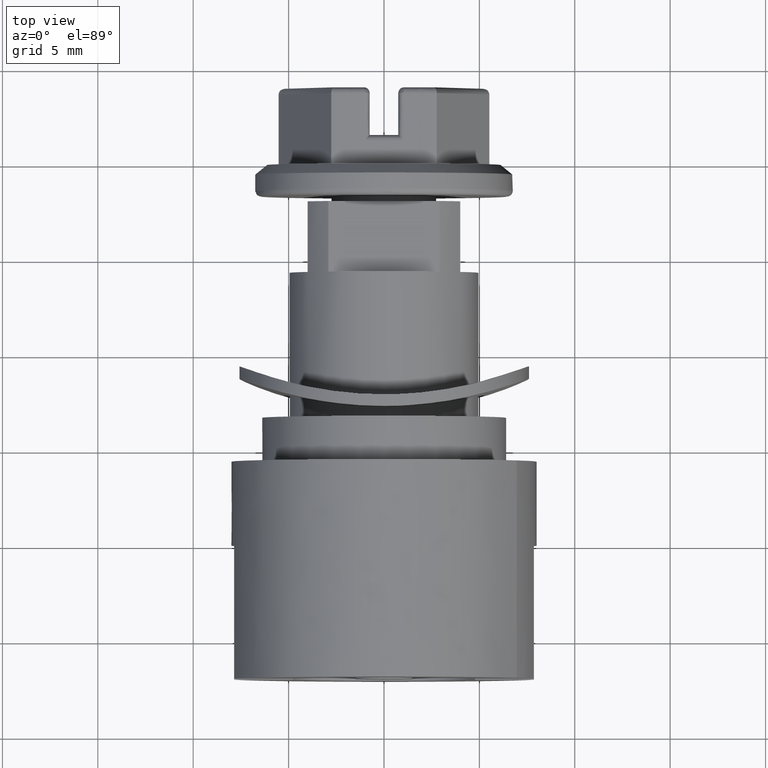
[diagram: clean part render]
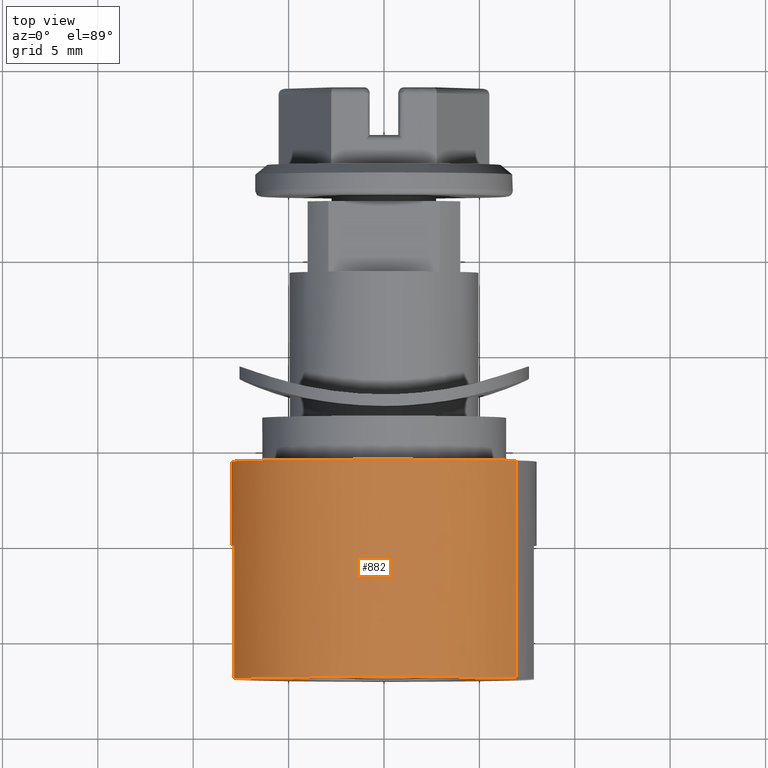
[diagram: same view with one face highlighted and labeled with its STEP entity id]
A machine part, top view. The second image highlights one B-rep face of the part: STEP entity #882.
In plain terms, the highlighted face is a freeform B-spline surface patch.
Its self-contained STEP definition (entity closure, byte-faithful):
#730=CARTESIAN_POINT('',(6.950676112668893,4.685000215249976,3.960821588565669));
#731=CARTESIAN_POINT('',(6.721242238242456,4.685000215249976,4.363445265182824));
#732=CARTESIAN_POINT('',(6.446854267913689,4.685000215249976,4.736884643724912));
#733=CARTESIAN_POINT('',(1.709969624188778,4.685000215249976,11.183738911638599));
#734=CARTESIAN_POINT('',(-4.736884643724912,4.685000215249976,6.446854267913689));
#735=CARTESIAN_POINT('',(-11.183738911638599,4.685000215249976,1.709969624188778));
#736=CARTESIAN_POINT('',(-6.446854267913689,4.685000215249976,-4.736884643724912));
#737=CARTESIAN_POINT('',(-1.709969624188778,4.685000215249976,-11.183738911638599));
#738=CARTESIAN_POINT('',(4.736884643724912,4.685000215249976,-6.446854267913689));
#739=CARTESIAN_POINT('',(6.950676112668893,-7.292125005381249,3.960821588565669));
#740=CARTESIAN_POINT('',(6.721242238242456,-7.292125005381249,4.363445265182824));
#741=CARTESIAN_POINT('',(6.446854267913689,-7.292125005381250,4.736884643724912));
#742=CARTESIAN_POINT('',(1.709969624188778,-7.292125005381249,11.183738911638599));
#743=CARTESIAN_POINT('',(-4.736884643724912,-7.292125005381250,6.446854267913689));
#744=CARTESIAN_POINT('',(-11.183738911638599,-7.292125005381249,1.709969624188778));
#745=CARTESIAN_POINT('',(-6.446854267913689,-7.292125005381250,-4.736884643724912));
#746=CARTESIAN_POINT('',(-1.709969624188778,-7.292125005381249,-11.183738911638599));
#747=CARTESIAN_POINT('',(4.736884643724912,-7.292125005381250,-6.446854267913689));
#755=(BOUNDED_SURFACE()B_SPLINE_SURFACE(2,1,((#730,#739),(#731,#740),(#732,#741),(#733,#742),(#734,#743),(#735,#744),(#736,#745),(#737,#746),(#738,#747)),.UNSPECIFIED.,.F.,.F.,.U.)B_SPLINE_SURFACE_WITH_KNOTS((3,2,2,2,3),(2,2),(0.0,1.060386770040789,14.315221395550649,27.570056021060520,40.824890646570381),(0.0,11.977125220631230),.UNSPECIFIED.)GEOMETRIC_REPRESENTATION_ITEM()RATIONAL_B_SPLINE_SURFACE(((0.956886118190660,0.956886118190660),(0.976568542494924,0.976568542494924),(1.0,1.0),(0.707106781186548,0.707106781186548),(1.0,1.0),(0.707106781186548,0.707106781186548),(1.0,1.0),(0.707106781186548,0.707106781186548),(1.0,1.0)))REPRESENTATION_ITEM('')SURFACE());
#756=CARTESIAN_POINT('',(6.950677806079058,4.400000209999988,3.960818616869772));
#757=VERTEX_POINT('',#756);
#758=CARTESIAN_POINT('',(0.0,4.400000209999975,8.000000379979609));
#759=VERTEX_POINT('',#758);
#760=CARTESIAN_POINT('',(6.950677806079058,4.400000209999988,3.960818616869773));
#761=CARTESIAN_POINT('',(4.648964682468554,4.400000209999976,8.000000379979610));
#762=CARTESIAN_POINT('',(0.0,4.400000209999975,8.000000379979609));
#770=(BOUNDED_CURVE()B_SPLINE_CURVE(2,(#760,#761,#762),.UNSPECIFIED.,.F.,.U.)B_SPLINE_CURVE_WITH_KNOTS((3,3),(0.834403307781611,1.0),.UNSPECIFIED.)CURVE()GEOMETRIC_REPRESENTATION_ITEM()RATIONAL_B_SPLINE_CURVE((0.869000264213485,0.805991407165182,1.0))REPRESENTATION_ITEM(''));
#771=EDGE_CURVE('',#757,#759,#770,.T.);
#772=ORIENTED_EDGE('',*,*,#771,.T.);
#773=CARTESIAN_POINT('',(0.0,4.400000209999975,-8.000000379979609));
#774=VERTEX_POINT('',#773);
#775=CARTESIAN_POINT('',(0.0,4.400000209999975,8.000000379979609));
#776=CARTESIAN_POINT('',(-8.000000379979610,4.400000209999975,8.000000379979610));
#777=CARTESIAN_POINT('',(-8.000000379979609,4.400000209999975,0.0));
#778=CARTESIAN_POINT('',(-8.000000379979610,4.400000209999975,-8.000000379979610));
#779=CARTESIAN_POINT('',(0.0,4.400000209999975,-8.000000379979609));
#787=(BOUNDED_CURVE()B_SPLINE_CURVE(2,(#775,#776,#777,#778,#779),.UNSPECIFIED.,.F.,.U.)B_SPLINE_CURVE_WITH_KNOTS((3,2,3),(0.0,0.250000000000000,0.500000000000000),.UNSPECIFIED.)CURVE()GEOMETRIC_REPRESENTATION_ITEM()RATIONAL_B_SPLINE_CURVE((1.0,0.707106781186547,1.0,0.707106781186547,1.0))REPRESENTATION_ITEM(''));
#788=EDGE_CURVE('',#759,#774,#787,.T.);
#789=ORIENTED_EDGE('',*,*,#788,.T.);
#790=CARTESIAN_POINT('',(4.736884566080258,4.400000209999975,-6.446854324963804));
#791=VERTEX_POINT('',#790);
#792=CARTESIAN_POINT('',(0.0,4.400000209999975,-8.000000379979609));
#793=CARTESIAN_POINT('',(2.623067673324863,4.400000209999974,-8.000000379979607));
#794=CARTESIAN_POINT('',(4.736884566080258,4.400000209999975,-6.446854324963804));
#802=(BOUNDED_CURVE()B_SPLINE_CURVE(2,(#792,#793,#794),.UNSPECIFIED.,.F.,.U.)B_SPLINE_CURVE_WITH_KNOTS((3,3),(0.500000000000000,0.602062773267511),.UNSPECIFIED.)CURVE()GEOMETRIC_REPRESENTATION_ITEM()RATIONAL_B_SPLINE_CURVE((1.0,0.880426023266605,0.858484459941491))REPRESENTATION_ITEM(''));
#803=EDGE_CURVE('',#774,#791,#802,.T.);
#804=ORIENTED_EDGE('',*,*,#803,.T.);
#805=CARTESIAN_POINT('',(4.736883952768762,-6.999999999999999,-6.446854775599874));
#806=VERTEX_POINT('',#805);
#807=CARTESIAN_POINT('',(4.736884566080258,4.400000209999975,-6.446854324963804));
#808=CARTESIAN_POINT('',(4.736883952768762,-6.999999999999999,-6.446854775599874));
#809=QUASI_UNIFORM_CURVE('',1,(#807,#808),.UNSPECIFIED.,.F.,.U.);
#810=EDGE_CURVE('',#791,#806,#809,.T.);
#811=ORIENTED_EDGE('',*,*,#810,.T.);
#812=CARTESIAN_POINT('',(-7.858117195991370,-7.0,-1.500000071246170));
#813=VERTEX_POINT('',#812);
#814=CARTESIAN_POINT('',(-7.858117195991375,-7.0,-1.500000071246170));
#815=CARTESIAN_POINT('',(-6.617361849255898,-7.0,-8.000000379979609));
#816=CARTESIAN_POINT('',(0.0,-7.0,-8.000000379979609));
#817=CARTESIAN_POINT('',(2.623066830436785,-7.000000000000001,-8.000000379979609));
#818=CARTESIAN_POINT('',(4.736883952768761,-6.999999999999999,-6.446854775599874));
#826=(BOUNDED_CURVE()B_SPLINE_CURVE(2,(#814,#815,#816,#817,#818),.UNSPECIFIED.,.F.,.U.)B_SPLINE_CURVE_WITH_KNOTS((3,2,3),(0.0,0.500000000000000,0.730058150697014),.UNSPECIFIED.)CURVE()GEOMETRIC_REPRESENTATION_ITEM()RATIONAL_B_SPLINE_CURVE((1.0,0.770551750371122,1.0,0.894427120019427,0.886005846167208))REPRESENTATION_ITEM(''));
#827=EDGE_CURVE('',#813,#806,#826,.T.);
#828=ORIENTED_EDGE('',*,*,#827,.F.);
#829=CARTESIAN_POINT('',(-7.858117195991370,0.0,-1.500000071246170));
#830=VERTEX_POINT('',#829);
#831=CARTESIAN_POINT('',(-7.858117195991370,0.0,-1.500000071246170));
#832=CARTESIAN_POINT('',(-7.858117195991370,-7.0,-1.500000071246170));
#833=QUASI_UNIFORM_CURVE('',1,(#831,#832),.UNSPECIFIED.,.F.,.U.);
#834=EDGE_CURVE('',#830,#813,#833,.T.);
#835=ORIENTED_EDGE('',*,*,#834,.F.);
#836=CARTESIAN_POINT('',(-7.858117195991379,0.0,1.500000071246180));
#837=VERTEX_POINT('',#836);
#838=CARTESIAN_POINT('',(-7.858117195991365,0.0,1.500000071246176));
#839=CARTESIAN_POINT('',(-8.144445352930323,0.0,3.252607E-015));
#840=CARTESIAN_POINT('',(-7.858117195991367,0.0,-1.500000071246169));
#848=(BOUNDED_CURVE()B_SPLINE_CURVE(2,(#838,#839,#840),.UNSPECIFIED.,.F.,.U.)CURVE()GEOMETRIC_REPRESENTATION_ITEM()QUASI_UNIFORM_CURVE()RATIONAL_B_SPLINE_CURVE((1.0,0.982264602843857,1.0))REPRESENTATION_ITEM(''));
#849=EDGE_CURVE('',#837,#830,#848,.T.);
#850=ORIENTED_EDGE('',*,*,#849,.F.);
#851=CARTESIAN_POINT('',(-7.858117195991370,-7.0,1.500000071246175));
#852=VERTEX_POINT('',#851);
#853=CARTESIAN_POINT('',(-7.858117195991379,0.0,1.500000071246180));
#854=CARTESIAN_POINT('',(-7.858117195991370,-7.0,1.500000071246175));
#855=QUASI_UNIFORM_CURVE('',1,(#853,#854),.UNSPECIFIED.,.F.,.U.);
#856=EDGE_CURVE('',#837,#852,#855,.T.);
#857=ORIENTED_EDGE('',*,*,#856,.T.);
#858=CARTESIAN_POINT('',(6.950677621538427,-7.0,3.960818940712828));
#859=VERTEX_POINT('',#858);
#860=CARTESIAN_POINT('',(6.950677621538427,-7.0,3.960818940712829));
#861=CARTESIAN_POINT('',(4.648964433166169,-7.0,8.000000379979607));
#862=CARTESIAN_POINT('',(0.0,-7.0,8.000000379979609));
#863=CARTESIAN_POINT('',(-6.617361849255892,-7.0,8.000000379979610));
#864=CARTESIAN_POINT('',(-7.858117195991373,-7.0,1.500000071246180));
#872=(BOUNDED_CURVE()B_SPLINE_CURVE(2,(#860,#861,#862,#863,#864),.UNSPECIFIED.,.F.,.U.)B_SPLINE_CURVE_WITH_KNOTS((3,2,3),(0.122998849568754,0.500000000000000,1.0),.UNSPECIFIED.)CURVE()GEOMETRIC_REPRESENTATION_ITEM()RATIONAL_B_SPLINE_CURVE((0.914882578109837,0.826995491850955,1.0,0.770551750371122,1.0))REPRESENTATION_ITEM(''));
#873=EDGE_CURVE('',#859,#852,#872,.T.);
#874=ORIENTED_EDGE('',*,*,#873,.F.);
#875=CARTESIAN_POINT('',(6.950677806079058,4.400000209999988,3.960818616869772));
#876=CARTESIAN_POINT('',(6.950677621538427,-7.0,3.960818940712828));
#877=QUASI_UNIFORM_CURVE('',1,(#875,#876),.UNSPECIFIED.,.F.,.U.);
#878=EDGE_CURVE('',#757,#859,#877,.T.);
#879=ORIENTED_EDGE('',*,*,#878,.F.);
#880=EDGE_LOOP('',(#772,#789,#804,#811,#828,#835,#850,#857,#874,#879));
#881=FACE_OUTER_BOUND('',#880,.T.);
#882=ADVANCED_FACE('',(#881),#755,.T.);